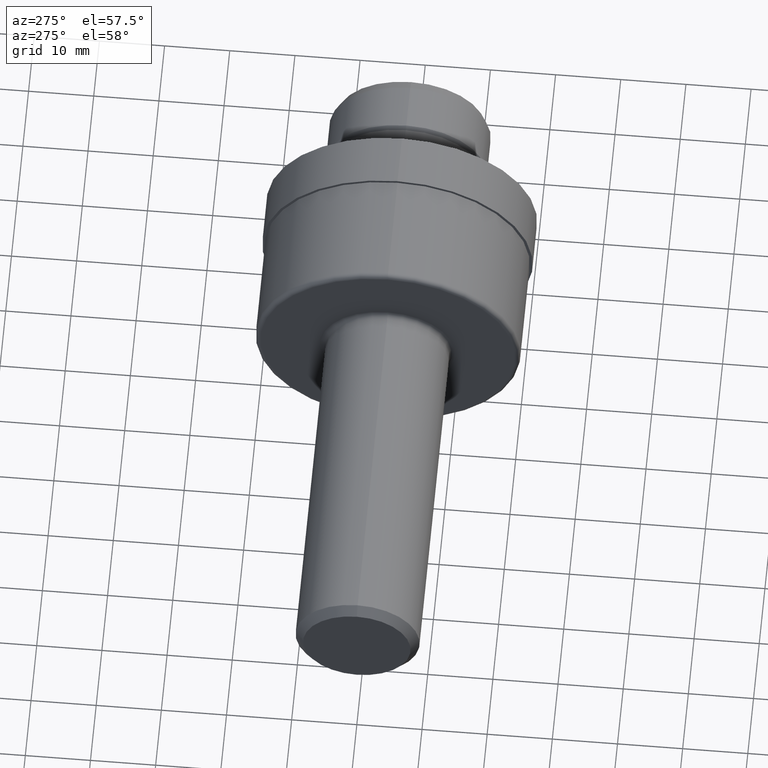
[diagram: clean part render]
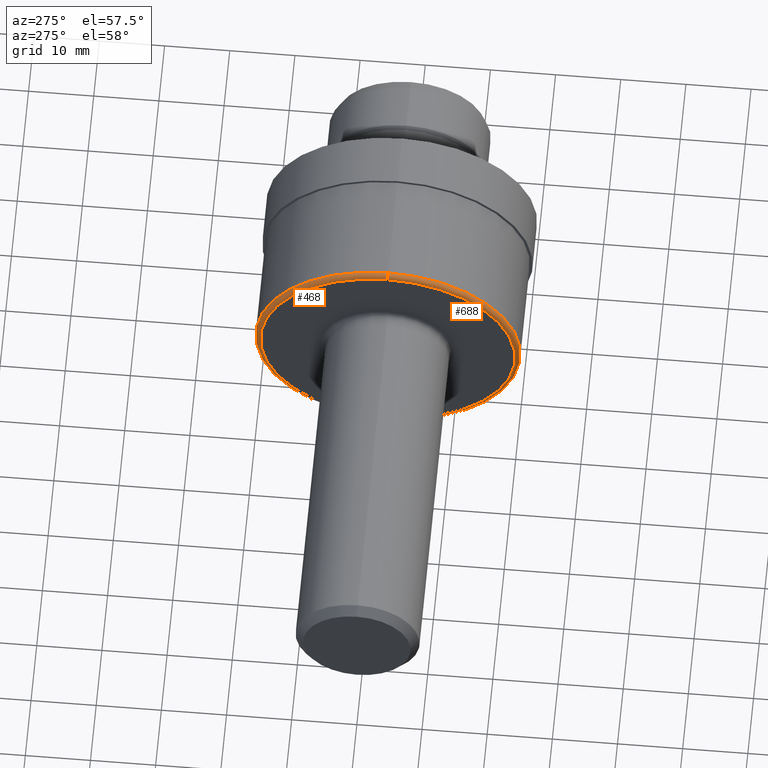
[diagram: same view with one multi-face feature highlighted, each face labeled with its STEP entity id]
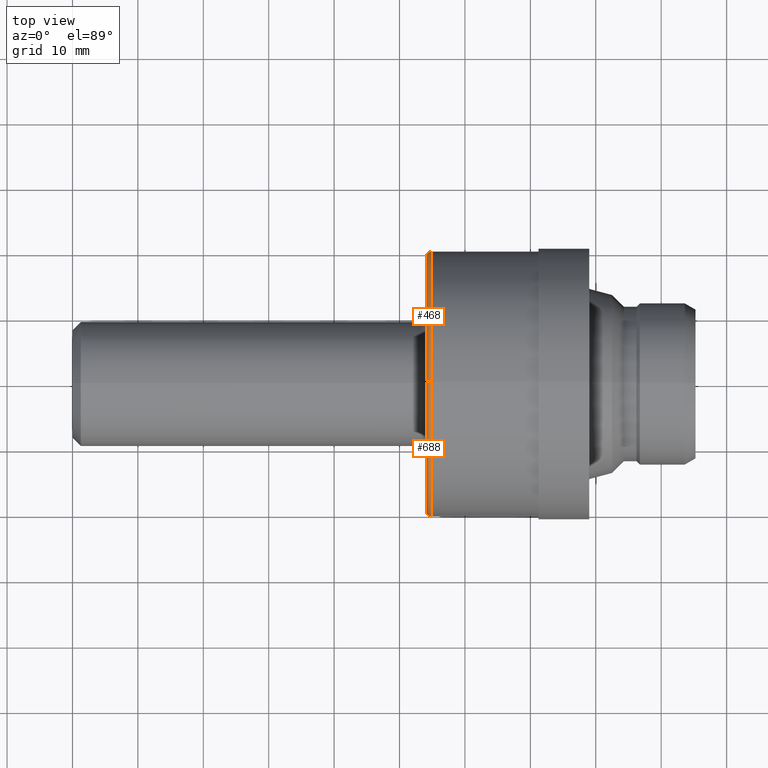
[diagram: same view with one multi-face feature highlighted, each face labeled with its STEP entity id]
A machine part, auxiliary view. The highlighted faces form ONE feature: a constant-radius fillet chain: 2 tangent blend faces with common blend radius 0.762 mm. The faces share edges in the B-rep.
A second angle (top view) of the same feature is appended — it is thin or edge-on in the first view.
Their STEP definitions:
[1] entity #688 (Torus):
#58 = ORIENTED_EDGE ( 'NONE', *, *, #473, .T. ) ;
#60 = EDGE_LOOP ( 'NONE', ( #779, #58, #311, #592 ) ) ;
#102 = TOROIDAL_SURFACE ( 'NONE', #835, 0.7700000000000001288, 0.02999999999999995379 ) ;
#153 = DIRECTION ( 'NONE',  ( 0.0000000000000000000, -1.000000000000000000, 0.0000000000000000000 ) ) ;
#175 = CARTESIAN_POINT ( 'NONE',  ( 2.159999999999999698, 0.0000000000000000000, 0.7700000000000001288 ) ) ;
#179 = DIRECTION ( 'NONE',  ( 0.0000000000000000000, 0.0000000000000000000, -1.000000000000000000 ) ) ;
#187 = CARTESIAN_POINT ( 'NONE',  ( 2.129999999999999893, 9.613477373306722344E-17, -0.7700000000000001288 ) ) ;
#189 = CARTESIAN_POINT ( 'NONE',  ( 2.159999999999999698, 9.429780353434621002E-17, -0.7700000000000001288 ) ) ;
#196 = VERTEX_POINT ( 'NONE', #638 ) ;
#205 = CIRCLE ( 'NONE', #603, 0.02999999999999995379 ) ;
#211 = CARTESIAN_POINT ( 'NONE',  ( 2.129999999999999893, 0.0000000000000000000, 0.7700000000000001288 ) ) ;
#225 = DIRECTION ( 'NONE',  ( -1.000000000000000000, -0.0000000000000000000, -0.0000000000000000000 ) ) ;
#229 = VERTEX_POINT ( 'NONE', #187 ) ;
#232 = CARTESIAN_POINT ( 'NONE',  ( 2.129999999999999893, 0.0000000000000000000, 0.0000000000000000000 ) ) ;
#258 = DIRECTION ( 'NONE',  ( 0.0000000000000000000, -1.224646799147354933E-16, 1.000000000000000000 ) ) ;
#292 = CARTESIAN_POINT ( 'NONE',  ( 2.159999999999999698, 0.0000000000000000000, 0.0000000000000000000 ) ) ;
#293 = EDGE_CURVE ( 'NONE', #488, #229, #205, .T. ) ;
#311 = ORIENTED_EDGE ( 'NONE', *, *, #389, .T. ) ;
#323 = DIRECTION ( 'NONE',  ( 0.0000000000000000000, 0.0000000000000000000, 1.000000000000000000 ) ) ;
#357 = DIRECTION ( 'NONE',  ( -1.000000000000000000, -0.0000000000000000000, -0.0000000000000000000 ) ) ;
#360 = CARTESIAN_POINT ( 'NONE',  ( 2.159999999999999698, 0.0000000000000000000, 0.0000000000000000000 ) ) ;
#376 = EDGE_CURVE ( 'NONE', #229, #643, #540, .T. ) ;
#389 = EDGE_CURVE ( 'NONE', #196, #643, #504, .T. ) ;
#423 = AXIS2_PLACEMENT_3D ( 'NONE', #175, #153, #179 ) ;
#425 = DIRECTION ( 'NONE',  ( 0.0000000000000000000, 0.0000000000000000000, 1.000000000000000000 ) ) ;
#469 = AXIS2_PLACEMENT_3D ( 'NONE', #232, #225, #323 ) ;
#473 = EDGE_CURVE ( 'NONE', #488, #196, #824, .T. ) ;
#488 = VERTEX_POINT ( 'NONE', #552 ) ;
#504 = CIRCLE ( 'NONE', #423, 0.02999999999999995379 ) ;
#540 = CIRCLE ( 'NONE', #469, 0.7700000000000001288 ) ;
#552 = CARTESIAN_POINT ( 'NONE',  ( 2.159999999999999698, 9.797174393178826150E-17, -0.8000000000000000444 ) ) ;
#570 = DIRECTION ( 'NONE',  ( 0.0000000000000000000, 0.0000000000000000000, 1.000000000000000000 ) ) ;
#592 = ORIENTED_EDGE ( 'NONE', *, *, #376, .F. ) ;
#603 = AXIS2_PLACEMENT_3D ( 'NONE', #189, #644, #258 ) ;
#616 = FACE_OUTER_BOUND ( 'NONE', #60, .T. ) ;
#638 = CARTESIAN_POINT ( 'NONE',  ( 2.159999999999999698, 0.0000000000000000000, 0.8000000000000000444 ) ) ;
#643 = VERTEX_POINT ( 'NONE', #211 ) ;
#644 = DIRECTION ( 'NONE',  ( -0.0000000000000000000, 1.000000000000000000, 1.224646799147353207E-16 ) ) ;
#688 = ADVANCED_FACE ( 'NONE', ( #616 ), #102, .T. ) ;
#719 = AXIS2_PLACEMENT_3D ( 'NONE', #360, #742, #570 ) ;
#742 = DIRECTION ( 'NONE',  ( -1.000000000000000000, -0.0000000000000000000, -0.0000000000000000000 ) ) ;
#779 = ORIENTED_EDGE ( 'NONE', *, *, #293, .F. ) ;
#824 = CIRCLE ( 'NONE', #719, 0.8000000000000000444 ) ;
#835 = AXIS2_PLACEMENT_3D ( 'NONE', #292, #357, #425 ) ;
[2] entity #468 (Torus):
#44 = CARTESIAN_POINT ( 'NONE',  ( 2.159999999999999698, 0.0000000000000000000, 0.0000000000000000000 ) ) ;
#90 = CIRCLE ( 'NONE', #322, 0.7700000000000001288 ) ;
#118 = AXIS2_PLACEMENT_3D ( 'NONE', #837, #417, #766 ) ;
#119 = ORIENTED_EDGE ( 'NONE', *, *, #578, .F. ) ;
#153 = DIRECTION ( 'NONE',  ( 0.0000000000000000000, -1.000000000000000000, 0.0000000000000000000 ) ) ;
#158 = CARTESIAN_POINT ( 'NONE',  ( 2.129999999999999893, 0.0000000000000000000, 0.0000000000000000000 ) ) ;
#175 = CARTESIAN_POINT ( 'NONE',  ( 2.159999999999999698, 0.0000000000000000000, 0.7700000000000001288 ) ) ;
#179 = DIRECTION ( 'NONE',  ( 0.0000000000000000000, 0.0000000000000000000, -1.000000000000000000 ) ) ;
#187 = CARTESIAN_POINT ( 'NONE',  ( 2.129999999999999893, 9.613477373306722344E-17, -0.7700000000000001288 ) ) ;
#189 = CARTESIAN_POINT ( 'NONE',  ( 2.159999999999999698, 9.429780353434621002E-17, -0.7700000000000001288 ) ) ;
#196 = VERTEX_POINT ( 'NONE', #638 ) ;
#205 = CIRCLE ( 'NONE', #603, 0.02999999999999995379 ) ;
#211 = CARTESIAN_POINT ( 'NONE',  ( 2.129999999999999893, 0.0000000000000000000, 0.7700000000000001288 ) ) ;
#229 = VERTEX_POINT ( 'NONE', #187 ) ;
#254 = ORIENTED_EDGE ( 'NONE', *, *, #293, .T. ) ;
#258 = DIRECTION ( 'NONE',  ( 0.0000000000000000000, -1.224646799147354933E-16, 1.000000000000000000 ) ) ;
#266 = CIRCLE ( 'NONE', #831, 0.8000000000000000444 ) ;
#272 = ORIENTED_EDGE ( 'NONE', *, *, #558, .T. ) ;
#293 = EDGE_CURVE ( 'NONE', #488, #229, #205, .T. ) ;
#322 = AXIS2_PLACEMENT_3D ( 'NONE', #158, #690, #567 ) ;
#389 = EDGE_CURVE ( 'NONE', #196, #643, #504, .T. ) ;
#417 = DIRECTION ( 'NONE',  ( -1.000000000000000000, -0.0000000000000000000, -0.0000000000000000000 ) ) ;
#419 = DIRECTION ( 'NONE',  ( -1.000000000000000000, -0.0000000000000000000, -0.0000000000000000000 ) ) ;
#423 = AXIS2_PLACEMENT_3D ( 'NONE', #175, #153, #179 ) ;
#468 = ADVANCED_FACE ( 'NONE', ( #775 ), #597, .T. ) ;
#488 = VERTEX_POINT ( 'NONE', #552 ) ;
#491 = ORIENTED_EDGE ( 'NONE', *, *, #389, .F. ) ;
#495 = DIRECTION ( 'NONE',  ( 0.0000000000000000000, 0.0000000000000000000, 1.000000000000000000 ) ) ;
#504 = CIRCLE ( 'NONE', #423, 0.02999999999999995379 ) ;
#546 = EDGE_LOOP ( 'NONE', ( #272, #254, #119, #491 ) ) ;
#552 = CARTESIAN_POINT ( 'NONE',  ( 2.159999999999999698, 9.797174393178826150E-17, -0.8000000000000000444 ) ) ;
#558 = EDGE_CURVE ( 'NONE', #196, #488, #266, .T. ) ;
#567 = DIRECTION ( 'NONE',  ( 0.0000000000000000000, 0.0000000000000000000, 1.000000000000000000 ) ) ;
#578 = EDGE_CURVE ( 'NONE', #643, #229, #90, .T. ) ;
#597 = TOROIDAL_SURFACE ( 'NONE', #118, 0.7700000000000001288, 0.02999999999999995379 ) ;
#603 = AXIS2_PLACEMENT_3D ( 'NONE', #189, #644, #258 ) ;
#638 = CARTESIAN_POINT ( 'NONE',  ( 2.159999999999999698, 0.0000000000000000000, 0.8000000000000000444 ) ) ;
#643 = VERTEX_POINT ( 'NONE', #211 ) ;
#644 = DIRECTION ( 'NONE',  ( -0.0000000000000000000, 1.000000000000000000, 1.224646799147353207E-16 ) ) ;
#690 = DIRECTION ( 'NONE',  ( -1.000000000000000000, -0.0000000000000000000, -0.0000000000000000000 ) ) ;
#766 = DIRECTION ( 'NONE',  ( 0.0000000000000000000, 0.0000000000000000000, 1.000000000000000000 ) ) ;
#775 = FACE_OUTER_BOUND ( 'NONE', #546, .T. ) ;
#831 = AXIS2_PLACEMENT_3D ( 'NONE', #44, #419, #495 ) ;
#837 = CARTESIAN_POINT ( 'NONE',  ( 2.159999999999999698, 0.0000000000000000000, 0.0000000000000000000 ) ) ;